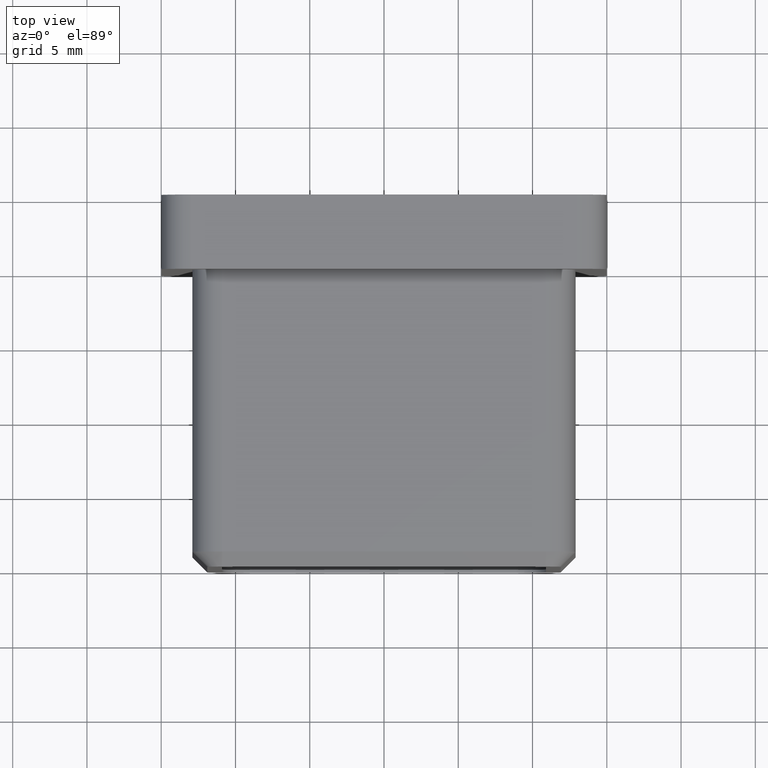
[diagram: clean part render]
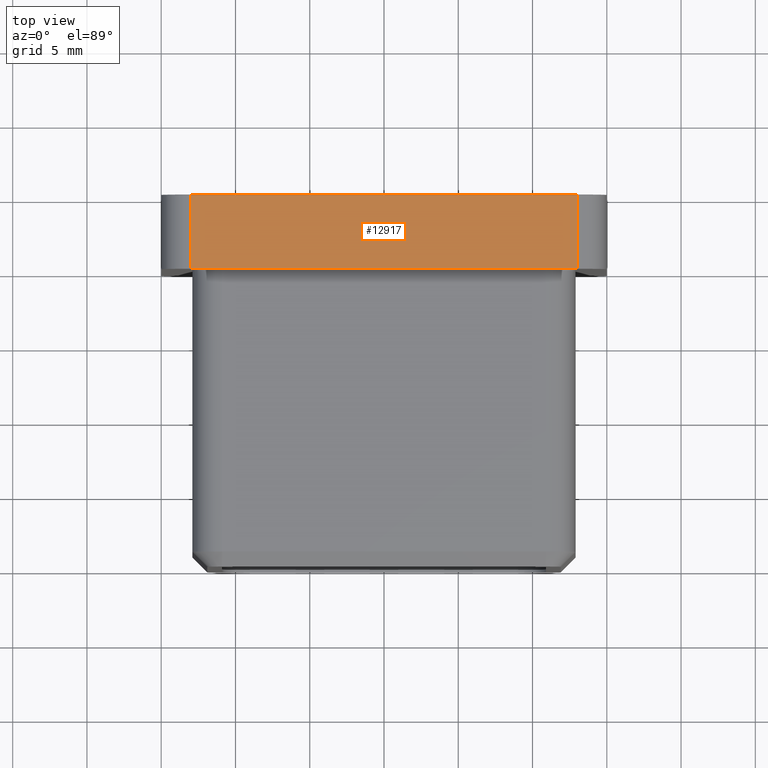
[diagram: same view with one face highlighted and labeled with its STEP entity id]
A machine part, top view. The second image highlights one B-rep face of the part: STEP entity #12917.
In plain terms, the highlighted planar face has unit normal (0, 0, -1).
Its self-contained STEP definition (entity closure, byte-faithful):
#65 = DIRECTION ( 'NONE',  ( -1.000000000000000000, 0.0000000000000000000, -0.0000000000000000000 ) ) ;
#223 = CARTESIAN_POINT ( 'NONE',  ( -12.99999999999999800, 0.0000000000000000000, 15.00000000000000700 ) ) ;
#1721 = LINE ( 'NONE', #4569, #4634 ) ;
#2624 = ORIENTED_EDGE ( 'NONE', *, *, #12943, .F. ) ;
#2864 = VERTEX_POINT ( 'NONE', #10484 ) ;
#4226 = VECTOR ( 'NONE', #8089, 1000.000000000000000 ) ;
#4441 = DIRECTION ( 'NONE',  ( 1.000000000000000000, 0.0000000000000000000, 0.0000000000000000000 ) ) ;
#4569 = CARTESIAN_POINT ( 'NONE',  ( -14.99999999999999800, 5.000000000000000000, 15.00000000000000700 ) ) ;
#4634 = VECTOR ( 'NONE', #4441, 1000.000000000000000 ) ;
#4815 = AXIS2_PLACEMENT_3D ( 'NONE', #7201, #13006, #65 ) ;
#6214 = EDGE_CURVE ( 'NONE', #2864, #14769, #12596, .T. ) ;
#6750 = VERTEX_POINT ( 'NONE', #223 ) ;
#7201 = CARTESIAN_POINT ( 'NONE',  ( -14.99999999999999800, 5.000000000000000000, 15.00000000000000700 ) ) ;
#8033 = CARTESIAN_POINT ( 'NONE',  ( -14.99999999999999800, 0.0000000000000000000, 15.00000000000000700 ) ) ;
#8089 = DIRECTION ( 'NONE',  ( 1.000000000000000000, 0.0000000000000000000, 0.0000000000000000000 ) ) ;
#8182 = LINE ( 'NONE', #15143, #14892 ) ;
#8635 = ORIENTED_EDGE ( 'NONE', *, *, #6214, .T. ) ;
#9941 = VERTEX_POINT ( 'NONE', #14126 ) ;
#10484 = CARTESIAN_POINT ( 'NONE',  ( 13.00000000000000400, 0.0000000000000000000, 15.00000000000000700 ) ) ;
#10880 = CARTESIAN_POINT ( 'NONE',  ( 13.00000000000000400, 5.000000000000000000, 15.00000000000000700 ) ) ;
#11326 = EDGE_CURVE ( 'NONE', #6750, #2864, #11364, .T. ) ;
#11364 = LINE ( 'NONE', #8033, #4226 ) ;
#11524 = DIRECTION ( 'NONE',  ( -0.0000000000000000000, 1.000000000000000000, -0.0000000000000000000 ) ) ;
#11712 = CARTESIAN_POINT ( 'NONE',  ( 13.00000000000000400, 5.000000000000000000, 15.00000000000000700 ) ) ;
#11816 = EDGE_LOOP ( 'NONE', ( #16197, #8635, #2624, #17407 ) ) ;
#12596 = LINE ( 'NONE', #11712, #17710 ) ;
#12917 = ADVANCED_FACE ( 'NONE', ( #17551 ), #12946, .F. ) ;
#12943 = EDGE_CURVE ( 'NONE', #9941, #14769, #1721, .T. ) ;
#12946 = PLANE ( 'NONE',  #4815 ) ;
#13006 = DIRECTION ( 'NONE',  ( 0.0000000000000000000, 0.0000000000000000000, -1.000000000000000000 ) ) ;
#13761 = EDGE_CURVE ( 'NONE', #9941, #6750, #8182, .T. ) ;
#14126 = CARTESIAN_POINT ( 'NONE',  ( -12.99999999999999800, 5.000000000000000000, 15.00000000000000700 ) ) ;
#14769 = VERTEX_POINT ( 'NONE', #10880 ) ;
#14892 = VECTOR ( 'NONE', #16572, 1000.000000000000000 ) ;
#15143 = CARTESIAN_POINT ( 'NONE',  ( -12.99999999999999800, 5.000000000000000000, 15.00000000000000700 ) ) ;
#16197 = ORIENTED_EDGE ( 'NONE', *, *, #11326, .T. ) ;
#16572 = DIRECTION ( 'NONE',  ( 0.0000000000000000000, -1.000000000000000000, 0.0000000000000000000 ) ) ;
#17407 = ORIENTED_EDGE ( 'NONE', *, *, #13761, .T. ) ;
#17551 = FACE_OUTER_BOUND ( 'NONE', #11816, .T. ) ;
#17710 = VECTOR ( 'NONE', #11524, 1000.000000000000000 ) ;